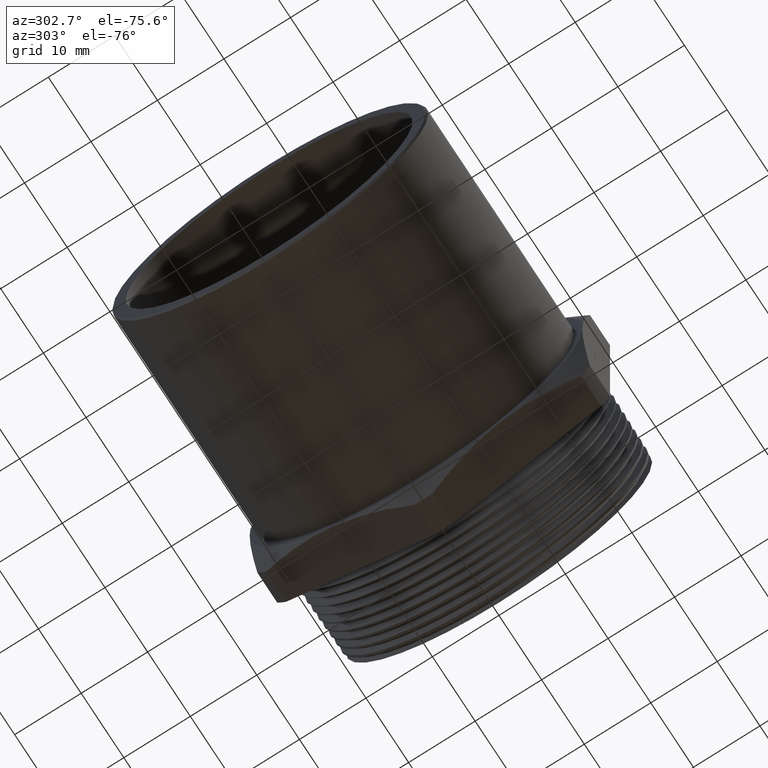
[diagram: clean part render]
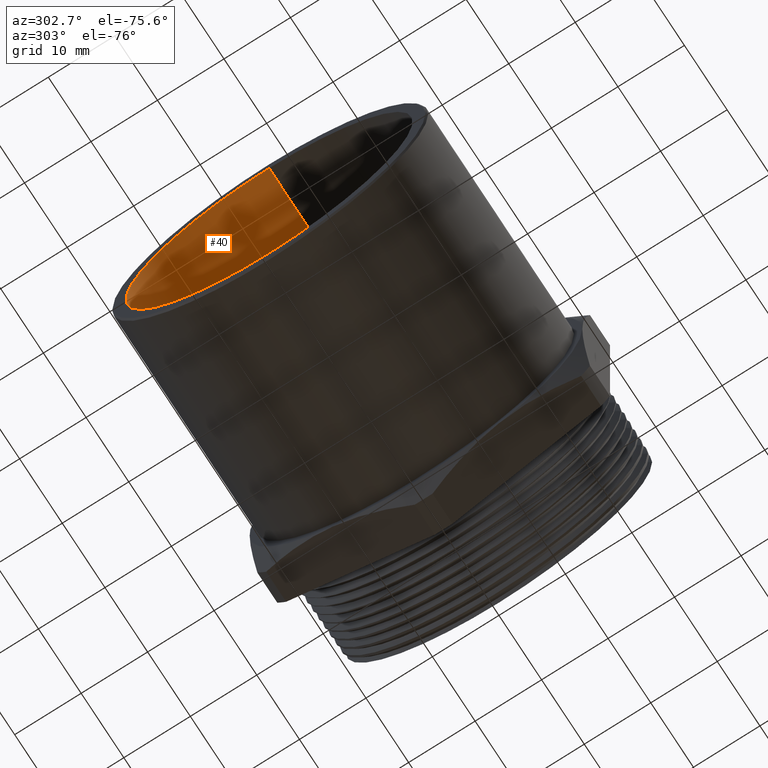
[diagram: same view with one face highlighted and labeled with its STEP entity id]
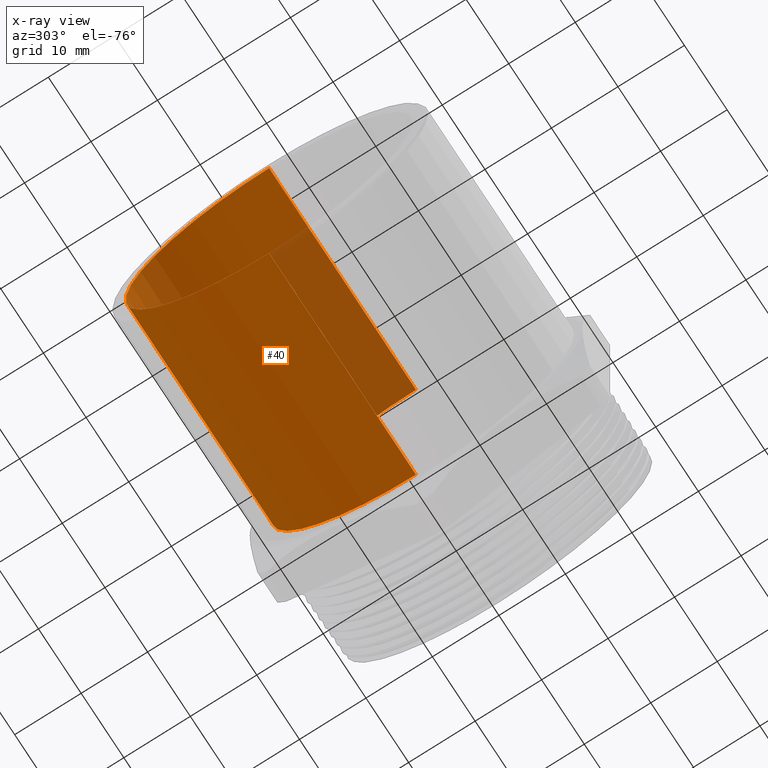
[diagram: x-ray of the same camera — body ghosted, the highlighted face saturated]
A machine part, auxiliary view. The second image highlights one B-rep face of the part: STEP entity #40.
The next image is the same camera in x-ray: the body ghosted, the highlighted face saturated — about 16% of this face is hidden behind the body in this view.
In plain terms, the highlighted cylindrical surface (partial cylindrical patch) has radius 21.59 mm, axis along (-1, -0, -0).
Its self-contained STEP definition (entity closure, byte-faithful):
#22 = EDGE_LOOP ( 'NONE', ( #24, #2879, #41, #34 ) ) ;
#24 = ORIENTED_EDGE ( 'NONE', *, *, #300, .F. ) ;
#34 = ORIENTED_EDGE ( 'NONE', *, *, #37, .T. ) ;
#37 = EDGE_CURVE ( 'NONE', #2902, #301, #1035, .T. ) ;
#40 = ADVANCED_FACE ( 'NONE', ( #1029 ), #1028, .F. ) ;
#41 = ORIENTED_EDGE ( 'NONE', *, *, #894, .T. ) ;
#46 = EDGE_CURVE ( 'NONE', #306, #604, #1017, .T. ) ;
#300 = EDGE_CURVE ( 'NONE', #604, #301, #1533, .T. ) ;
#301 = VERTEX_POINT ( 'NONE', #1529 ) ;
#306 = VERTEX_POINT ( 'NONE', #1583 ) ;
#604 = VERTEX_POINT ( 'NONE', #2118 ) ;
#894 = EDGE_CURVE ( 'NONE', #306, #2902, #2540, .T. ) ;
#1013 = DIRECTION ( 'NONE',  ( 0.0000000000000000000, 0.0000000000000000000, 1.000000000000000000 ) ) ;
#1014 = DIRECTION ( 'NONE',  ( -1.000000000000000000, -0.0000000000000000000, -0.0000000000000000000 ) ) ;
#1015 = CARTESIAN_POINT ( 'NONE',  ( -0.7650000000000001200, 0.0000000000000000000, 0.0000000000000000000 ) ) ;
#1016 = AXIS2_PLACEMENT_3D ( 'NONE', #1015, #1014, #1013 ) ;
#1017 = CIRCLE ( 'NONE', #1016, 0.8499999999999999800 ) ;
#1024 = DIRECTION ( 'NONE',  ( 0.0000000000000000000, 0.0000000000000000000, 1.000000000000000000 ) ) ;
#1025 = DIRECTION ( 'NONE',  ( -1.000000000000000000, -0.0000000000000000000, -0.0000000000000000000 ) ) ;
#1026 = CARTESIAN_POINT ( 'NONE',  ( -0.5911096051061856000, 0.0000000000000000000, 0.0000000000000000000 ) ) ;
#1027 = AXIS2_PLACEMENT_3D ( 'NONE', #1026, #1025, #1024 ) ;
#1028 = CYLINDRICAL_SURFACE ( 'NONE', #1027, 0.8499999999999999800 ) ;
#1029 = FACE_OUTER_BOUND ( 'NONE', #22, .T. ) ;
#1031 = DIRECTION ( 'NONE',  ( 0.0000000000000000000, 0.0000000000000000000, 1.000000000000000000 ) ) ;
#1032 = DIRECTION ( 'NONE',  ( -1.000000000000000000, -0.0000000000000000000, -0.0000000000000000000 ) ) ;
#1033 = CARTESIAN_POINT ( 'NONE',  ( -2.120000000000000100, 0.0000000000000000000, 0.0000000000000000000 ) ) ;
#1034 = AXIS2_PLACEMENT_3D ( 'NONE', #1033, #1032, #1031 ) ;
#1035 = CIRCLE ( 'NONE', #1034, 0.8499999999999999800 ) ;
#1529 = CARTESIAN_POINT ( 'NONE',  ( -2.120000000000000100, 1.040915400749020600E-016, -0.8499999999999999800 ) ) ;
#1530 = DIRECTION ( 'NONE',  ( -1.000000000000000000, -0.0000000000000000000, -0.0000000000000000000 ) ) ;
#1531 = VECTOR ( 'NONE', #1530, 39.37007874015748100 ) ;
#1532 = CARTESIAN_POINT ( 'NONE',  ( -0.5911096051061856000, 1.040915400749020600E-016, -0.8499999999999999800 ) ) ;
#1533 = LINE ( 'NONE', #1532, #1531 ) ;
#1583 = CARTESIAN_POINT ( 'NONE',  ( -0.7650000000000001200, 0.0000000000000000000, 0.8499999999999999800 ) ) ;
#2118 = CARTESIAN_POINT ( 'NONE',  ( -0.7650000000000001200, 1.040915400749020600E-016, -0.8499999999999999800 ) ) ;
#2537 = DIRECTION ( 'NONE',  ( -1.000000000000000000, -0.0000000000000000000, -0.0000000000000000000 ) ) ;
#2538 = VECTOR ( 'NONE', #2537, 39.37007874015748100 ) ;
#2539 = CARTESIAN_POINT ( 'NONE',  ( -0.5911096051061856000, 0.0000000000000000000, 0.8499999999999999800 ) ) ;
#2540 = LINE ( 'NONE', #2539, #2538 ) ;
#2745 = CARTESIAN_POINT ( 'NONE',  ( -2.120000000000000100, 0.0000000000000000000, 0.8499999999999999800 ) ) ;
#2879 = ORIENTED_EDGE ( 'NONE', *, *, #46, .F. ) ;
#2902 = VERTEX_POINT ( 'NONE', #2745 ) ;